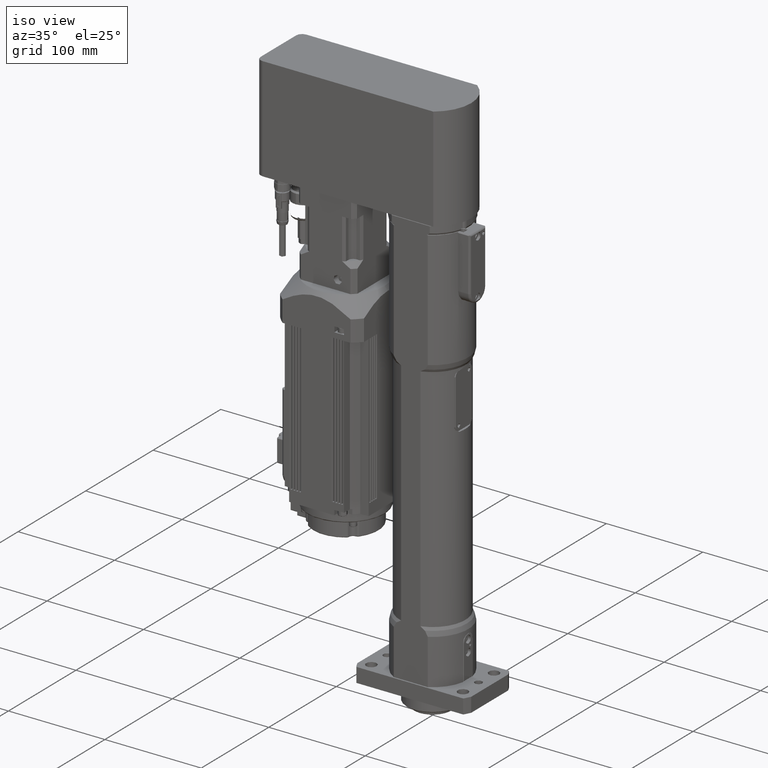
[diagram: clean part render]
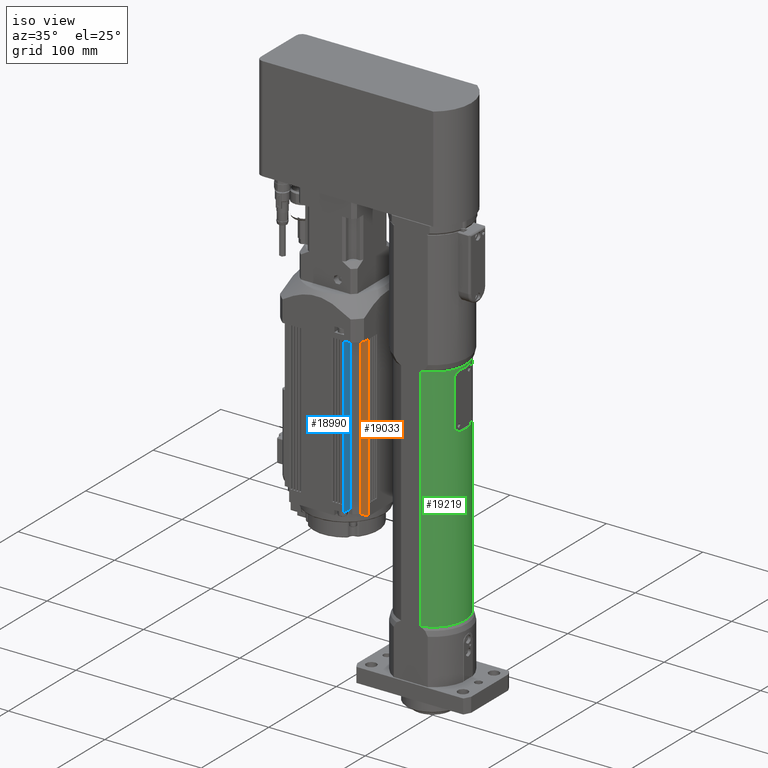
[diagram: same view with three faces highlighted in distinct colors, each labeled with its STEP entity id]
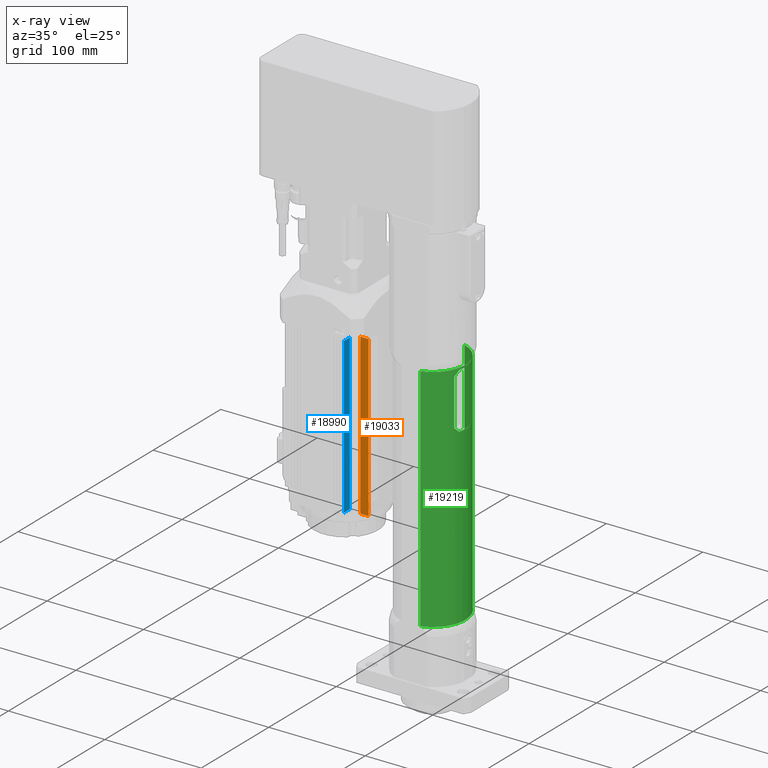
[diagram: x-ray of the same camera — body ghosted, the three highlighted faces saturated]
A machine part, iso view with three faces highlighted in distinct colors.
The next image is the same camera in x-ray (body ghosted, the three faces saturated) — at least one of them is partly hidden behind the body in this view.
Their STEP definitions:

[orange] entity #19033 — the highlighted planar face has unit normal (0, 1, -0).
#712=PLANE('',#20522);
#1786=LINE('',#29645,#3403);
#1801=LINE('',#29682,#3418);
#1857=LINE('',#29828,#3474);
#1858=LINE('',#29829,#3475);
#3403=VECTOR('',#24058,10.);
#3418=VECTOR('',#24097,10.);
#3474=VECTOR('',#24249,10.);
#3475=VECTOR('',#24250,10.);
#5044=FACE_OUTER_BOUND('',#6147,.T.);
#6147=EDGE_LOOP('',(#14531,#14532,#14533,#14534));
#8518=VERTEX_POINT('',#29642);
#8519=VERTEX_POINT('',#29644);
#8529=VERTEX_POINT('',#29680);
#8571=VERTEX_POINT('',#29827);
#10649=EDGE_CURVE('',#8518,#8519,#1786,.T.);
#10669=EDGE_CURVE('',#8529,#8518,#1801,.T.);
#10738=EDGE_CURVE('',#8571,#8529,#1857,.T.);
#10739=EDGE_CURVE('',#8571,#8519,#1858,.T.);
#14531=ORIENTED_EDGE('',*,*,#10669,.F.);
#14532=ORIENTED_EDGE('',*,*,#10738,.F.);
#14533=ORIENTED_EDGE('',*,*,#10739,.T.);
#14534=ORIENTED_EDGE('',*,*,#10649,.F.);
#19033=ADVANCED_FACE('',(#5044),#712,.F.);
#20522=AXIS2_PLACEMENT_3D('',#29826,#24247,#24248);
#24058=DIRECTION('',(2.46519032881568E-32,4.87512283120822E-48,1.));
#24097=DIRECTION('',(-1.,2.7755575615629E-17,2.46519032881568E-32));
#24247=DIRECTION('center_axis',(2.7755575615629E-17,1.,-5.55935059699183E-48));
#24248=DIRECTION('ref_axis',(-1.,2.7755575615629E-17,2.46519032881568E-32));
#24249=DIRECTION('',(-2.46519032881568E-32,-4.87512283120822E-48,-1.));
#24250=DIRECTION('',(-1.,2.7755575615629E-17,2.46519032881568E-32));
#29642=CARTESIAN_POINT('',(-55.1754397012682,-28.4999999999999,156.500000000001));
#29644=CARTESIAN_POINT('',(-55.1754397012682,-28.4999999999999,322.500000000001));
#29645=CARTESIAN_POINT('',(-55.1754397012682,-28.4999999999999,156.500000000001));
#29680=CARTESIAN_POINT('',(-46.4999999999999,-28.4999999999999,156.500000000001));
#29682=CARTESIAN_POINT('',(-68.2499999999999,-28.4999999999999,156.500000000001));
#29826=CARTESIAN_POINT('Origin',(-46.4999999999999,-28.4999999999999,156.500000000001));
#29827=CARTESIAN_POINT('',(-46.4999999999999,-28.4999999999999,322.500000000001));
#29828=CARTESIAN_POINT('',(-46.4999999999998,-28.4999999999999,245.000000000001));
#29829=CARTESIAN_POINT('',(-55.1754397012682,-28.4999999999999,322.500000000001));

[blue] entity #18990 — the highlighted planar face has unit normal (-1, 0, 0).
#678=PLANE('',#20460);
#1760=LINE('',#29586,#3377);
#1783=LINE('',#29637,#3400);
#1784=LINE('',#29639,#3401);
#1785=LINE('',#29640,#3402);
#3377=VECTOR('',#24006,10.);
#3400=VECTOR('',#24051,10.);
#3401=VECTOR('',#24052,10.);
#3402=VECTOR('',#24053,10.);
#5001=FACE_OUTER_BOUND('',#6100,.T.);
#6100=EDGE_LOOP('',(#14303,#14304,#14305,#14306));
#8498=VERTEX_POINT('',#29582);
#8499=VERTEX_POINT('',#29584);
#8516=VERTEX_POINT('',#29636);
#8517=VERTEX_POINT('',#29638);
#10620=EDGE_CURVE('',#8498,#8499,#1760,.T.);
#10645=EDGE_CURVE('',#8499,#8516,#1783,.T.);
#10646=EDGE_CURVE('',#8516,#8517,#1784,.T.);
#10647=EDGE_CURVE('',#8498,#8517,#1785,.T.);
#14303=ORIENTED_EDGE('',*,*,#10620,.T.);
#14304=ORIENTED_EDGE('',*,*,#10645,.T.);
#14305=ORIENTED_EDGE('',*,*,#10646,.T.);
#14306=ORIENTED_EDGE('',*,*,#10647,.F.);
#18990=ADVANCED_FACE('',(#5001),#678,.F.);
#20460=AXIS2_PLACEMENT_3D('',#29635,#24049,#24050);
#24006=DIRECTION('',(2.7755575615629E-17,1.,-5.55935059699183E-48));
#24049=DIRECTION('center_axis',(-1.,2.7755575615629E-17,2.46519032881568E-32));
#24050=DIRECTION('ref_axis',(-2.7755575615629E-17,-1.,5.55935059699183E-48));
#24051=DIRECTION('',(2.46519032881568E-32,4.87512283120822E-48,1.));
#24052=DIRECTION('',(-2.7755575615629E-17,-1.,5.55935059699183E-48));
#24053=DIRECTION('',(2.46519032881568E-32,4.87512283120822E-48,1.));
#29582=CARTESIAN_POINT('',(-61.4999999999999,-43.4999999999999,161.500000000001));
#29584=CARTESIAN_POINT('',(-61.4999999999999,-34.8245602987316,161.500000000001));
#29586=CARTESIAN_POINT('',(-61.4999999999999,-36.6622801493658,161.500000000001));
#29635=CARTESIAN_POINT('Origin',(-61.4999999999999,-34.8245602987316,156.500000000001));
#29636=CARTESIAN_POINT('',(-61.4999999999999,-34.8245602987316,322.500000000001));
#29637=CARTESIAN_POINT('',(-61.4999999999999,-34.8245602987316,156.500000000001));
#29638=CARTESIAN_POINT('',(-61.4999999999999,-43.4999999999999,322.500000000001));
#29639=CARTESIAN_POINT('',(-61.4999999999999,-43.4999999999999,322.500000000001));
#29640=CARTESIAN_POINT('',(-61.4999999999999,-43.4999999999999,245.000000000001));

[green] entity #19219 — the highlighted cylindrical surface (partial cylindrical patch) has radius 34 mm, axis along (0, 0, 1).
#278=FACE_BOUND('',#6381,.T.);
#2019=LINE('',#30582,#3636);
#2028=LINE('',#30673,#3645);
#2061=LINE('',#30853,#3678);
#2066=LINE('',#30889,#3683);
#3636=VECTOR('',#24877,10.);
#3645=VECTOR('',#24900,10.);
#3678=VECTOR('',#25015,10.);
#3683=VECTOR('',#25030,10.);
#4416=CYLINDRICAL_SURFACE('',#20876,34.);
#5230=FACE_OUTER_BOUND('',#6380,.T.);
#6380=EDGE_LOOP('',(#15538,#15539,#15540,#15541));
#6381=EDGE_LOOP('',(#15542,#15543,#15544,#15545,#15546,#15547,#15548,#15549));
#6843=B_SPLINE_CURVE_WITH_KNOTS('',3,(#30838,#30839,#30840,#30841,#30842,
#30843,#30844,#30845,#30846,#30847),.UNSPECIFIED.,.F.,.F.,(4,2,2,2,4),(-0.772100928863819,
-0.574810460380427,-0.377519991897035,-0.188759995948518,0.),
 .UNSPECIFIED.);
#6844=B_SPLINE_CURVE_WITH_KNOTS('',3,(#30859,#30860,#30861,#30862,#30863,
#30864,#30865,#30866,#30867,#30868),.UNSPECIFIED.,.F.,.F.,(4,2,2,2,4),(0.,
0.188759995948518,0.377519991897035,0.574810460380427,0.772100928863819),
 .UNSPECIFIED.);
#6845=B_SPLINE_CURVE_WITH_KNOTS('',3,(#30874,#30875,#30876,#30877,#30878,
#30879,#30880,#30881,#30882,#30883),.UNSPECIFIED.,.F.,.F.,(4,2,2,2,4),(1.53168907801242,
1.72044907396094,1.90920906990946,2.10649953839285,2.30379000687624),
 .UNSPECIFIED.);
#6846=B_SPLINE_CURVE_WITH_KNOTS('',3,(#30895,#30896,#30897,#30898,#30899,
#30900,#30901,#30902,#30903,#30904),.UNSPECIFIED.,.F.,.F.,(4,2,2,2,4),(0.759588469608742,
0.956878938092134,1.15416940657553,1.34292940252404,1.53168939847256),
 .UNSPECIFIED.);
#7431=CIRCLE('',#20800,34.);
#7436=CIRCLE('',#20812,34.);
#7466=CIRCLE('',#20873,34.);
#7467=CIRCLE('',#20875,34.);
#8767=VERTEX_POINT('',#30577);
#8768=VERTEX_POINT('',#30581);
#8784=VERTEX_POINT('',#30668);
#8785=VERTEX_POINT('',#30672);
#8816=VERTEX_POINT('',#30828);
#8817=VERTEX_POINT('',#30829);
#8820=VERTEX_POINT('',#30837);
#8822=VERTEX_POINT('',#30852);
#8824=VERTEX_POINT('',#30858);
#8826=VERTEX_POINT('',#30873);
#8828=VERTEX_POINT('',#30888);
#8830=VERTEX_POINT('',#30894);
#11042=EDGE_CURVE('',#8768,#8767,#2019,.T.);
#11063=EDGE_CURVE('',#8785,#8784,#2028,.T.);
#11116=EDGE_CURVE('',#8816,#8817,#7431,.T.);
#11120=EDGE_CURVE('',#8817,#8820,#6843,.T.);
#11123=EDGE_CURVE('',#8820,#8822,#2061,.T.);
#11126=EDGE_CURVE('',#8822,#8824,#6844,.T.);
#11129=EDGE_CURVE('',#8826,#8816,#6845,.T.);
#11132=EDGE_CURVE('',#8828,#8826,#2066,.T.);
#11135=EDGE_CURVE('',#8830,#8828,#6846,.T.);
#11138=EDGE_CURVE('',#8824,#8830,#7436,.T.);
#11210=EDGE_CURVE('',#8785,#8767,#7466,.T.);
#11211=EDGE_CURVE('',#8768,#8784,#7467,.T.);
#15538=ORIENTED_EDGE('',*,*,#11042,.T.);
#15539=ORIENTED_EDGE('',*,*,#11210,.F.);
#15540=ORIENTED_EDGE('',*,*,#11063,.T.);
#15541=ORIENTED_EDGE('',*,*,#11211,.F.);
#15542=ORIENTED_EDGE('',*,*,#11138,.T.);
#15543=ORIENTED_EDGE('',*,*,#11135,.T.);
#15544=ORIENTED_EDGE('',*,*,#11132,.T.);
#15545=ORIENTED_EDGE('',*,*,#11129,.T.);
#15546=ORIENTED_EDGE('',*,*,#11116,.T.);
#15547=ORIENTED_EDGE('',*,*,#11120,.T.);
#15548=ORIENTED_EDGE('',*,*,#11123,.T.);
#15549=ORIENTED_EDGE('',*,*,#11126,.T.);
#19219=ADVANCED_FACE('',(#5230,#278),#4416,.T.);
#20800=AXIS2_PLACEMENT_3D('',#30830,#25003,#25004);
#20812=AXIS2_PLACEMENT_3D('',#30909,#25040,#25041);
#20873=AXIS2_PLACEMENT_3D('',#31100,#25198,#25199);
#20875=AXIS2_PLACEMENT_3D('',#31102,#25202,#25203);
#20876=AXIS2_PLACEMENT_3D('',#31103,#25204,#25205);
#24877=DIRECTION('',(0.,0.,1.));
#24900=DIRECTION('',(0.,0.,-1.));
#25003=DIRECTION('center_axis',(0.,0.,-1.));
#25004=DIRECTION('ref_axis',(-1.,0.,0.));
#25015=DIRECTION('',(0.,0.,1.));
#25030=DIRECTION('',(0.,0.,-1.));
#25040=DIRECTION('center_axis',(0.,0.,1.));
#25041=DIRECTION('ref_axis',(-1.,0.,0.));
#25198=DIRECTION('center_axis',(0.,0.,1.));
#25199=DIRECTION('ref_axis',(-1.,0.,0.));
#25202=DIRECTION('center_axis',(0.,0.,-1.));
#25203=DIRECTION('ref_axis',(-1.,0.,0.));
#25204=DIRECTION('center_axis',(0.,0.,1.));
#25205=DIRECTION('ref_axis',(1.,-1.65389215948551E-15,0.));
#30577=CARTESIAN_POINT('',(9.98749217771911,32.5,309.));
#30581=CARTESIAN_POINT('',(9.98749217771911,32.5,70.));
#30582=CARTESIAN_POINT('',(9.98749217771911,32.5,70.));
#30668=CARTESIAN_POINT('',(9.98749217771903,-32.5,70.));
#30672=CARTESIAN_POINT('',(9.98749217771903,-32.5,309.));
#30673=CARTESIAN_POINT('',(9.98749217771903,-32.5,70.));
#30828=CARTESIAN_POINT('',(33.0454232837166,8.,249.));
#30829=CARTESIAN_POINT('',(33.0454232837166,-8.,249.));
#30830=CARTESIAN_POINT('Origin',(0.,0.,249.));
#30837=CARTESIAN_POINT('',(31.41655614481,-13.,254.));
#30838=CARTESIAN_POINT('Ctrl Pts',(33.0454232837166,-8.00000000000001,249.));
#30839=CARTESIAN_POINT('Ctrl Pts',(32.8906856613767,-8.6391712785173,249.));
#30840=CARTESIAN_POINT('Ctrl Pts',(32.7052635615763,-9.3159418222046,249.129545442548));
#30841=CARTESIAN_POINT('Ctrl Pts',(32.325997565121,-10.5570316913719,249.650905969634));
#30842=CARTESIAN_POINT('Ctrl Pts',(32.1330572202445,-11.1216973112429,250.04255353652));
#30843=CARTESIAN_POINT('Ctrl Pts',(31.8168900309405,-11.9954968996403,250.932753850951));
#30844=CARTESIAN_POINT('Ctrl Pts',(31.670490360415,-12.3714684569533,251.485092093626));
#30845=CARTESIAN_POINT('Ctrl Pts',(31.4696109492567,-12.8738797601816,252.703932133173));
#30846=CARTESIAN_POINT('Ctrl Pts',(31.41655614481,-13.,253.370800013505));
#30847=CARTESIAN_POINT('Ctrl Pts',(31.41655614481,-13.,254.));
#30852=CARTESIAN_POINT('',(31.41655614481,-13.,302.));
#30853=CARTESIAN_POINT('',(31.41655614481,-13.,70.));
#30858=CARTESIAN_POINT('',(33.0454232837166,-8.,307.));
#30859=CARTESIAN_POINT('Ctrl Pts',(31.41655614481,-13.,302.));
#30860=CARTESIAN_POINT('Ctrl Pts',(31.41655614481,-13.,302.629199986495));
#30861=CARTESIAN_POINT('Ctrl Pts',(31.4696109492567,-12.8738797601816,303.296067866827));
#30862=CARTESIAN_POINT('Ctrl Pts',(31.670490360415,-12.3714684569533,304.514907906374));
#30863=CARTESIAN_POINT('Ctrl Pts',(31.8168900309405,-11.9954968996403,305.067246149049));
#30864=CARTESIAN_POINT('Ctrl Pts',(32.1330572202445,-11.1216973112429,305.95744646348));
#30865=CARTESIAN_POINT('Ctrl Pts',(32.325997565121,-10.5570316913719,306.349094030366));
#30866=CARTESIAN_POINT('Ctrl Pts',(32.7052635615763,-9.31594182220457,306.870454557452));
#30867=CARTESIAN_POINT('Ctrl Pts',(32.8906856613767,-8.6391712785173,307.));
#30868=CARTESIAN_POINT('Ctrl Pts',(33.0454232837166,-8.,307.));
#30873=CARTESIAN_POINT('',(31.41655614481,13.,254.));
#30874=CARTESIAN_POINT('Ctrl Pts',(31.41655614481,13.,254.));
#30875=CARTESIAN_POINT('Ctrl Pts',(31.41655614481,13.,253.370800013505));
#30876=CARTESIAN_POINT('Ctrl Pts',(31.4696109492567,12.8738797601816,252.703932133173));
#30877=CARTESIAN_POINT('Ctrl Pts',(31.670490360415,12.3714684569533,251.485092093626));
#30878=CARTESIAN_POINT('Ctrl Pts',(31.8168900309405,11.9954968996403,250.932753850951));
#30879=CARTESIAN_POINT('Ctrl Pts',(32.1330572202445,11.1216973112429,250.04255353652));
#30880=CARTESIAN_POINT('Ctrl Pts',(32.325997565121,10.5570316913719,249.650905969634));
#30881=CARTESIAN_POINT('Ctrl Pts',(32.7052635615763,9.3159418222046,249.129545442548));
#30882=CARTESIAN_POINT('Ctrl Pts',(32.8906856613767,8.6391712785173,249.));
#30883=CARTESIAN_POINT('Ctrl Pts',(33.0454232837166,8.,249.));
#30888=CARTESIAN_POINT('',(31.41655614481,13.,302.));
#30889=CARTESIAN_POINT('',(31.41655614481,13.,70.));
#30894=CARTESIAN_POINT('',(33.0454232837166,8.,307.));
#30895=CARTESIAN_POINT('Ctrl Pts',(33.0454232837166,7.99999999999999,307.));
#30896=CARTESIAN_POINT('Ctrl Pts',(32.8906856613767,8.63917127851729,307.));
#30897=CARTESIAN_POINT('Ctrl Pts',(32.7052635615763,9.31594182220457,306.870454557452));
#30898=CARTESIAN_POINT('Ctrl Pts',(32.325997565121,10.557031691372,306.349094030366));
#30899=CARTESIAN_POINT('Ctrl Pts',(32.1330572202445,11.1216973112429,305.95744646348));
#30900=CARTESIAN_POINT('Ctrl Pts',(31.8168900309405,11.9954968996403,305.067246149049));
#30901=CARTESIAN_POINT('Ctrl Pts',(31.670490360415,12.3714684569533,304.514907906374));
#30902=CARTESIAN_POINT('Ctrl Pts',(31.4696109492567,12.8738797601817,303.296067866827));
#30903=CARTESIAN_POINT('Ctrl Pts',(31.41655614481,13.,302.629199986495));
#30904=CARTESIAN_POINT('Ctrl Pts',(31.41655614481,13.,302.));
#30909=CARTESIAN_POINT('Origin',(0.,0.,307.));
#31100=CARTESIAN_POINT('Origin',(0.,0.,309.));
#31102=CARTESIAN_POINT('Origin',(0.,0.,70.));
#31103=CARTESIAN_POINT('Origin',(0.,0.,70.));